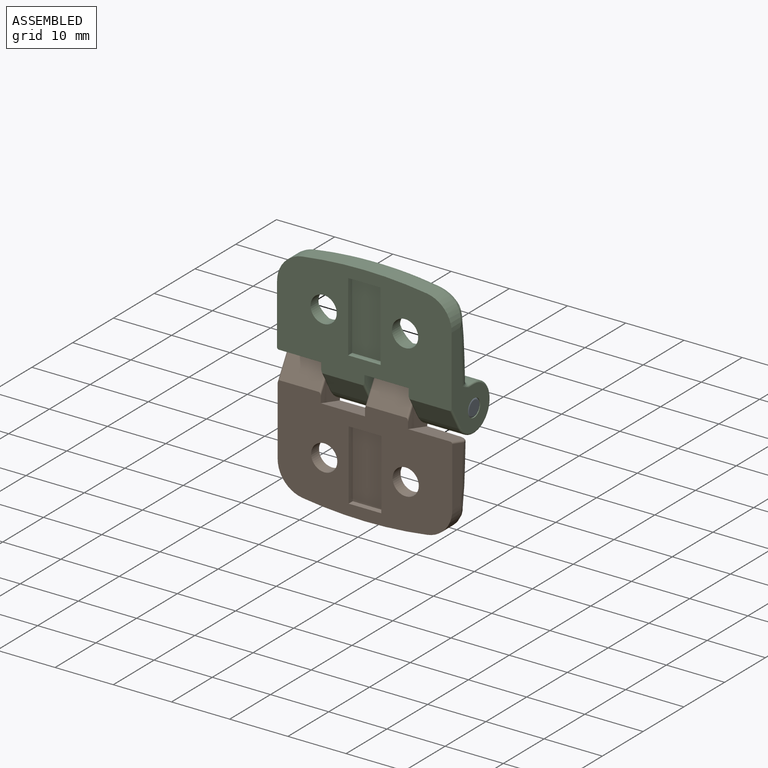
[diagram: assembled view]
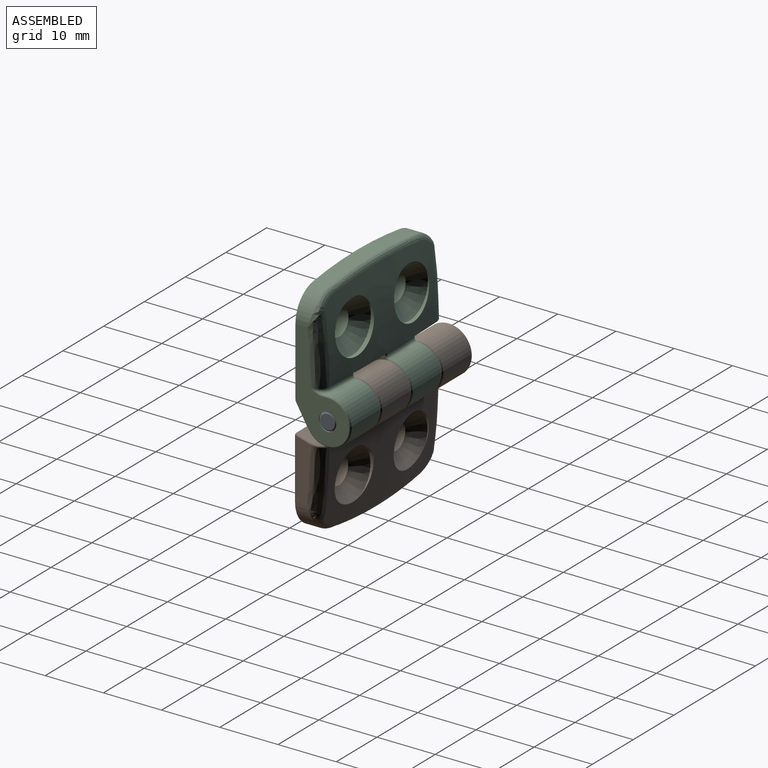
[diagram: assembled view, second angle]
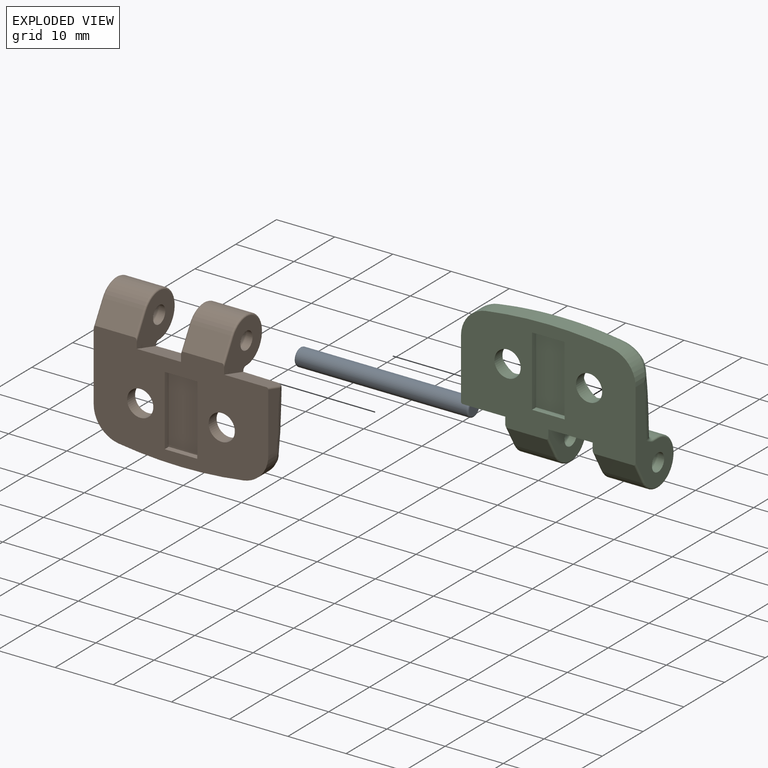
[diagram: exploded view]
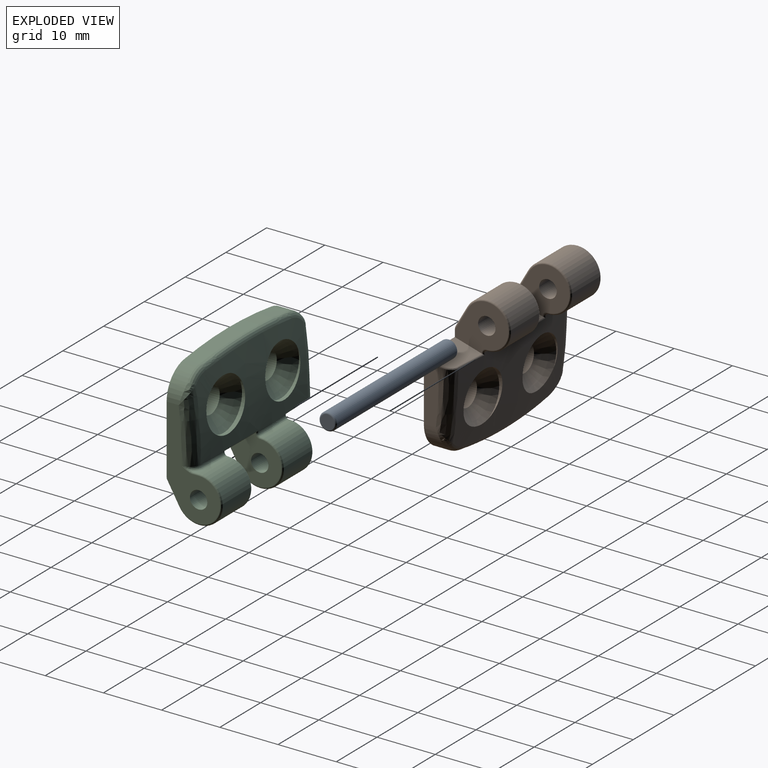
[diagram: exploded view, second angle]
ASSEMBLY  parts=3 mates=2
PART A: 5 faces, bbox 29.9x3.2x3.2 mm
  f0: torus R=1.2mm, axis (1,0,0), area 4.1mm2, adj f2,f4
  f1: torus R=1.2mm, axis (1,0,0), area 4.1mm2, adj f2,f3
  f2: cylinder r=1.5mm len=29.3mm, axis (1,0,0), area 276.1mm2, adj f0,f1
  f3: plane 2.4x2.4mm, normal (1,0,0), area 4.5mm2, adj f1
  f4: plane 2.4x2.4mm, normal (-1,0,0), area 4.5mm2, adj f0
PART B: 68 faces, bbox 30.7x10.3x24.1 mm
  f0: torus R=3.7mm, axis (1,0,0), area 7.7mm2, adj f14,f43,f60,f61
  f1: torus R=3.7mm, axis (1,0,0), area 7.7mm2, adj f13,f42,f56,f57
  f2: torus R=3.7mm, axis (1,0,0), area 7.7mm2, adj f14,f45,f52,f53
  f3: cone r=2.25mm half-angle=45deg, axis (0,1,0), area 67.1mm2, adj f5,f7,f16
  f4: cone r=2.25mm half-angle=45deg, axis (0,1,0), area 67.1mm2, adj f6,f8,f16
  f5: cylinder r=4.5mm len=9mm, axis (0,-1,0), area 9mm2, adj f3,f15,f16
  f6: cylinder r=4.5mm len=9mm, axis (0,-1,0), area 8.9mm2, adj f4,f15,f16
  f7: cylinder r=2.25mm len=4.5mm, axis (0,1,0), area 27.6mm2, adj f3,f17
  f8: cylinder r=2.25mm len=4.5mm, axis (0,1,0), area 27.6mm2, adj f4,f17
  f9: cylinder r=1.5mm len=7.4mm, axis (1,0,0), area 69.7mm2, adj f31,f42
  f10: cylinder r=1.5mm len=7.4mm, axis (1,0,0), area 69.7mm2, adj f43,f45
  f11: torus R=3.7mm, axis (-1,0,0), area 7.7mm2, adj f13,f31,f39,f40
  f12: cylinder r=75mm len=21.43mm, axis (0,1,0), area 58.4mm2, adj f17,f27,f37,f38
  f13: cylinder r=4mm len=8mm, axis (1,0,0), area 113.9mm2, adj f1,f11,f23,f24
  f14: cylinder r=4mm len=8mm, axis (1,0,0), area 113.8mm2, adj f0,f2,f18,f20,f36
  f15: bspline ~26.25x7.1mm, area 116.5mm2, adj f5,f6,f16,f21,f22,f25,f34,f36
  f16: bspline ~26.24x6.31mm, area 110.9mm2, adj f3,f4,f5,f6,f15,f26,f27,f28
  f17: plane 30.22x18.2mm, normal (0,-1,0), area 392.2mm2, adj f7,f8,f12,f19,f20,f23,f31,f37
  f18: plane 2.48x0.08mm, normal (0,0,-1), area 0.1mm2, adj f14,f22,f53
  f19: plane 10.27x2.62mm, normal (1,0,0), area 24.1mm2, adj f17,f21,f32,f38,f48,f49
  f20: plane 6.8x3.53mm, normal (0,-0.87,0.5), area 27.7mm2, adj f14,f17,f52,f60
  f21: bspline ~7.11x2.31mm, area 21.1mm2, adj f15,f19,f32,f48,f50,f51
  f22: bspline ~2.52x0.58mm, area 1.9mm2, adj f15,f18,f36,f54
  f23: plane 6.8x3.53mm, normal (0,-0.87,0.5), area 27.7mm2, adj f13,f17,f39,f56
  f24: plane 6.8x1.05mm, normal (0,0,-1), area 2.2mm2, adj f13,f25,f35,f40,f57
  f25: bspline ~5.31x0.78mm, area 4.1mm2, adj f15,f24,f35,f58
  f26: bspline ~3.2x2.22mm, area 4.7mm2, adj f16,f27,f30,f37
  f27: bspline ~21.48x1.59mm, area 29.9mm2, adj f12,f16,f26,f28
  f28: bspline ~3.2x2.22mm, area 4.7mm2, adj f16,f27,f29,f38
  f29: bspline ~3.27x1.88mm, area 1.8mm2, adj f28,f32,f38
  f30: bspline ~3.27x1.88mm, area 1.8mm2, adj f26,f33,f37
  f31: plane 17.49x9.21mm, normal (-1,0,0), area 69.8mm2, adj f9,f11,f17,f33,f34,f37,f39,f40
  f32: bspline ~5.08x2.56mm, area 11mm2, adj f16,f19,f21,f29
  f33: bspline ~5.08x2.56mm, area 11mm2, adj f16,f30,f31,f34
  f34: bspline ~7.11x2.31mm, area 21.3mm2, adj f15,f31,f33,f35
  f35: bspline ~2.5x2.38mm, area 1.8mm2, adj f24,f25,f34,f41
  f36: bspline ~4.35x0.54mm, area 3.4mm2, adj f14,f15,f22,f61
  f37: cylinder r=5mm len=4.95mm, axis (0,1,0), area 18.2mm2, adj f12,f17,f26,f30,f31
  f38: cylinder r=5mm len=4.95mm, axis (0,1,0), area 18.1mm2, adj f12,f17,f19,f28,f29
  f39: cylinder r=0.3mm len=4.13mm, axis (0,-0.5,-0.87), area 2mm2, adj f11,f17,f23,f31
  f40: cylinder r=0.3mm len=1.05mm, axis (0,1,0), area 0.5mm2, adj f11,f24,f31,f41
  f41: bspline ~1.83x0.8mm, area 0.3mm2, adj f31,f35,f40
  f42: plane 9.2x8.22mm, normal (1,0,0), area 45.5mm2, adj f1,f9,f17,f44,f56,f57,f58,f59
  f43: plane 9.2x8.26mm, normal (-1,0,0), area 45.6mm2, adj f0,f10,f17,f44,f60,f61,f62
  f44: plane 7.63x4.83mm, normal (0,0.28,0.96), area 37.8mm2, adj f17,f42,f43,f47,f59,f62
  f45: plane 9.2x8.23mm, normal (1,0,0), area 45.5mm2, adj f2,f10,f17,f46,f52,f53,f54,f55
  f46: plane 7.31x4.7mm, normal (0,0.28,0.96), area 33.7mm2, adj f17,f45,f49,f50,f51,f55
  f47: bspline ~8.21x0.37mm, area 3.1mm2, adj f15,f44,f59,f62
  f48: cylinder r=1.98mm len=0.97mm, axis (0,0,-1), area 0.1mm2, adj f19,f21,f50
  f49: cylinder r=0.3mm len=2.78mm, axis (0,0.96,-0.28), area 1.3mm2, adj f17,f19,f46,f50
  f50: bspline ~1.98x1.71mm, area 1mm2, adj f21,f46,f48,f49,f51
  f51: bspline ~6.35x0.55mm, area 2.4mm2, adj f15,f21,f46,f50,f55
  f52: cylinder r=0.3mm len=4.13mm, axis (0,-0.5,-0.87), area 2mm2, adj f2,f17,f20,f45
  f53: cylinder r=0.3mm len=0.3mm, axis (0,1,0), area 0mm2, adj f2,f18,f45,f54
  f54: bspline ~0.8x0.8mm, area 0.4mm2, adj f22,f45,f53,f55
  f55: cylinder r=0.3mm len=0.35mm, axis (0,0.01,1), area 0.1mm2, adj f15,f45,f46,f51,f54
  f56: cylinder r=0.3mm len=4.13mm, axis (0,-0.5,-0.87), area 2mm2, adj f1,f17,f23,f42
  f57: cylinder r=0.3mm len=0.3mm, axis (0,1,0), area 0mm2, adj f1,f24,f42,f58
  f58: bspline ~0.8x0.8mm, area 0.5mm2, adj f25,f42,f57,f59
  f59: cylinder r=0.3mm len=0.34mm, axis (0,0.01,1), area 0.1mm2, adj f15,f42,f44,f47,f58
  f60: cylinder r=0.3mm len=4.13mm, axis (0,0.5,0.87), area 2mm2, adj f0,f17,f20,f43
  f61: bspline ~0.8x0.79mm, area 0.4mm2, adj f0,f36,f43,f62
  f62: cylinder r=0.3mm len=0.38mm, axis (0,0.01,1), area 0.1mm2, adj f15,f43,f44,f47,f61
  f63: plane 12x1mm, normal (-1,0,0), area 12mm2, adj f17,f64,f66,f67
  f64: plane 5.6x1mm, normal (0,0,1), area 5.6mm2, adj f17,f63,f65,f67
  f65: plane 12x1mm, normal (1,0,0), area 12mm2, adj f17,f64,f66,f67
  f66: plane 5.6x1mm, normal (0,0,-1), area 5.6mm2, adj f17,f63,f65,f67
  f67: plane 12x5.6mm, normal (0,-1,0), area 67.2mm2, adj f63,f64,f65,f66
PART C: 68 faces, bbox 30.7x10.3x24 mm
  f0: torus R=3.7mm, axis (-1,0,0), area 7.7mm2, adj f14,f43,f60,f61
  f1: torus R=3.7mm, axis (-1,0,0), area 7.7mm2, adj f13,f42,f56,f57
  f2: torus R=3.7mm, axis (-1,0,0), area 7.7mm2, adj f14,f45,f52,f53
  f3: cone r=2.25mm half-angle=45deg, axis (0,1,0), area 67.1mm2, adj f5,f7,f16
  f4: cone r=2.25mm half-angle=45deg, axis (0,1,0), area 67.1mm2, adj f6,f8,f16
  f5: cylinder r=4.5mm len=9mm, axis (0,-1,0), area 9mm2, adj f3,f15,f16
  f6: cylinder r=4.5mm len=9mm, axis (0,-1,0), area 8.9mm2, adj f4,f15,f16
  f7: cylinder r=2.25mm len=4.5mm, axis (0,1,0), area 27.6mm2, adj f3,f17
  f8: cylinder r=2.25mm len=4.5mm, axis (0,1,0), area 27.6mm2, adj f4,f17
  f9: cylinder r=1.5mm len=7.4mm, axis (-1,0,0), area 69.7mm2, adj f31,f42
  f10: cylinder r=1.5mm len=7.4mm, axis (-1,0,0), area 69.7mm2, adj f43,f45
  f11: torus R=3.7mm, axis (1,0,0), area 7.7mm2, adj f13,f31,f39,f40
  f12: cylinder r=75mm len=21.43mm, axis (0,1,0), area 58.4mm2, adj f17,f27,f37,f38
  f13: cylinder r=4mm len=8mm, axis (-1,0,0), area 113.9mm2, adj f1,f11,f23,f24
  f14: cylinder r=4mm len=8mm, axis (-1,0,0), area 113.8mm2, adj f0,f2,f18,f20,f36
  f15: bspline ~26.25x7.1mm, area 116.5mm2, adj f5,f6,f16,f21,f22,f25,f34,f36
  f16: bspline ~26.24x6.31mm, area 110.9mm2, adj f3,f4,f5,f6,f15,f26,f27,f28
  f17: plane 30.22x18.19mm, normal (0,-1,0), area 392.2mm2, adj f7,f8,f12,f19,f20,f23,f31,f37
  f18: plane 2.48x0.08mm, normal (0,0,1), area 0.1mm2, adj f14,f22,f53
  f19: plane 10.27x2.62mm, normal (-1,0,0), area 24.1mm2, adj f17,f21,f32,f38,f48,f49
  f20: plane 6.8x3.53mm, normal (0,-0.87,-0.5), area 27.7mm2, adj f14,f17,f52,f60
  f21: bspline ~7.11x2.31mm, area 21.1mm2, adj f15,f19,f32,f48,f50,f51
  f22: bspline ~2.52x0.58mm, area 1.9mm2, adj f15,f18,f36,f54
  f23: plane 6.8x3.53mm, normal (0,-0.87,-0.5), area 27.7mm2, adj f13,f17,f39,f56
  f24: plane 6.8x1.05mm, normal (0,0,1), area 2.2mm2, adj f13,f25,f35,f40,f57
  f25: bspline ~5.31x0.78mm, area 4.1mm2, adj f15,f24,f35,f58
  f26: bspline ~3.2x2.22mm, area 4.7mm2, adj f16,f27,f30,f37
  f27: bspline ~21.48x1.59mm, area 29.9mm2, adj f12,f16,f26,f28
  f28: bspline ~3.2x2.22mm, area 4.7mm2, adj f16,f27,f29,f38
  f29: bspline ~3.27x1.88mm, area 1.8mm2, adj f28,f32,f38
  f30: bspline ~3.27x1.88mm, area 1.8mm2, adj f26,f33,f37
  f31: plane 17.49x9.21mm, normal (1,0,0), area 69.8mm2, adj f9,f11,f17,f33,f34,f37,f39,f40
  f32: bspline ~5.08x2.56mm, area 11mm2, adj f16,f19,f21,f29
  f33: bspline ~5.08x2.56mm, area 11mm2, adj f16,f30,f31,f34
  f34: bspline ~7.11x2.31mm, area 21.3mm2, adj f15,f31,f33,f35
  f35: bspline ~2.5x2.38mm, area 1.8mm2, adj f24,f25,f34,f41
  f36: bspline ~4.35x0.54mm, area 3.4mm2, adj f14,f15,f22,f61
  f37: cylinder r=5mm len=4.95mm, axis (0,1,0), area 18.2mm2, adj f12,f17,f26,f30,f31
  f38: cylinder r=5mm len=4.95mm, axis (0,1,0), area 18.1mm2, adj f12,f17,f19,f28,f29
  f39: cylinder r=0.3mm len=4.13mm, axis (0,-0.5,0.87), area 2mm2, adj f11,f17,f23,f31
  f40: cylinder r=0.3mm len=1.05mm, axis (0,1,0), area 0.5mm2, adj f11,f24,f31,f41
  f41: bspline ~1.83x0.8mm, area 0.3mm2, adj f31,f35,f40
  f42: plane 9.2x8.22mm, normal (-1,0,0), area 45.5mm2, adj f1,f9,f17,f44,f56,f57,f58,f59
  f43: plane 9.2x8.26mm, normal (1,0,0), area 45.6mm2, adj f0,f10,f17,f44,f60,f61,f62
  f44: plane 7.63x4.83mm, normal (0,0.28,-0.96), area 37.8mm2, adj f17,f42,f43,f47,f59,f62
  f45: plane 9.2x8.23mm, normal (-1,0,0), area 45.5mm2, adj f2,f10,f17,f46,f52,f53,f54,f55
  f46: plane 7.31x4.7mm, normal (0,0.28,-0.96), area 33.7mm2, adj f17,f45,f49,f50,f51,f55
  f47: bspline ~8.21x0.37mm, area 3.1mm2, adj f15,f44,f59,f62
  f48: cylinder r=1.98mm len=0.97mm, axis (0,0,1), area 0.1mm2, adj f19,f21,f50
  f49: cylinder r=0.3mm len=2.78mm, axis (0,0.96,0.28), area 1.3mm2, adj f17,f19,f46,f50
  f50: bspline ~1.98x1.71mm, area 1mm2, adj f21,f46,f48,f49,f51
  f51: bspline ~6.35x0.55mm, area 2.4mm2, adj f15,f21,f46,f50,f55
  f52: cylinder r=0.3mm len=4.13mm, axis (0,-0.5,0.87), area 2mm2, adj f2,f17,f20,f45
  f53: cylinder r=0.3mm len=0.3mm, axis (0,1,0), area 0mm2, adj f2,f18,f45,f54
  f54: bspline ~0.8x0.8mm, area 0.4mm2, adj f22,f45,f53,f55
  f55: cylinder r=0.3mm len=0.35mm, axis (0,0.01,-1), area 0.1mm2, adj f15,f45,f46,f51,f54
  f56: cylinder r=0.3mm len=4.13mm, axis (0,-0.5,0.87), area 2mm2, adj f1,f17,f23,f42
  f57: cylinder r=0.3mm len=0.3mm, axis (0,1,0), area 0mm2, adj f1,f24,f42,f58
  f58: bspline ~0.8x0.8mm, area 0.5mm2, adj f25,f42,f57,f59
  f59: cylinder r=0.3mm len=0.34mm, axis (0,0.01,-1), area 0.1mm2, adj f15,f42,f44,f47,f58
  f60: cylinder r=0.3mm len=4.13mm, axis (0,0.5,-0.87), area 2mm2, adj f0,f17,f20,f43
  f61: bspline ~0.8x0.79mm, area 0.4mm2, adj f0,f36,f43,f62
  f62: cylinder r=0.3mm len=0.38mm, axis (0,0.01,-1), area 0.1mm2, adj f15,f43,f44,f47,f61
  f63: plane 12x1mm, normal (1,0,0), area 12mm2, adj f17,f64,f66,f67
  f64: plane 5.6x1mm, normal (0,0,-1), area 5.6mm2, adj f17,f63,f65,f67
  f65: plane 12x1mm, normal (-1,0,0), area 12mm2, adj f17,f64,f66,f67
  f66: plane 5.6x1mm, normal (0,0,1), area 5.6mm2, adj f17,f63,f65,f67
  f67: plane 12x5.6mm, normal (0,-1,0), area 67.2mm2, adj f63,f64,f65,f66
PLACE A t=(-1.25,3.53,11.55)mm
PLACE B t=(-1.25,3.53,11.55)mm
PLACE C t=(-1.35,3.53,11.55)mm
MATE fastened A.f0 <-> B.f0  axis (-1,0,0) through (-16.25,9.03,11.55)mm
MATE revolute C.f0 <-> A.f0  axis (1,0,0) through (13.65,9.03,11.55)mm
